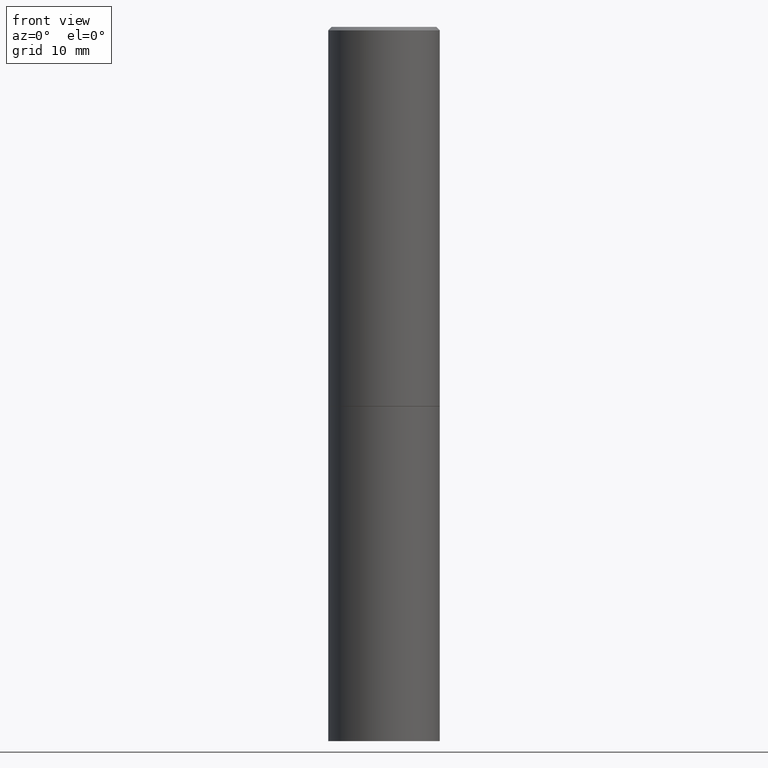
[diagram: clean part render]
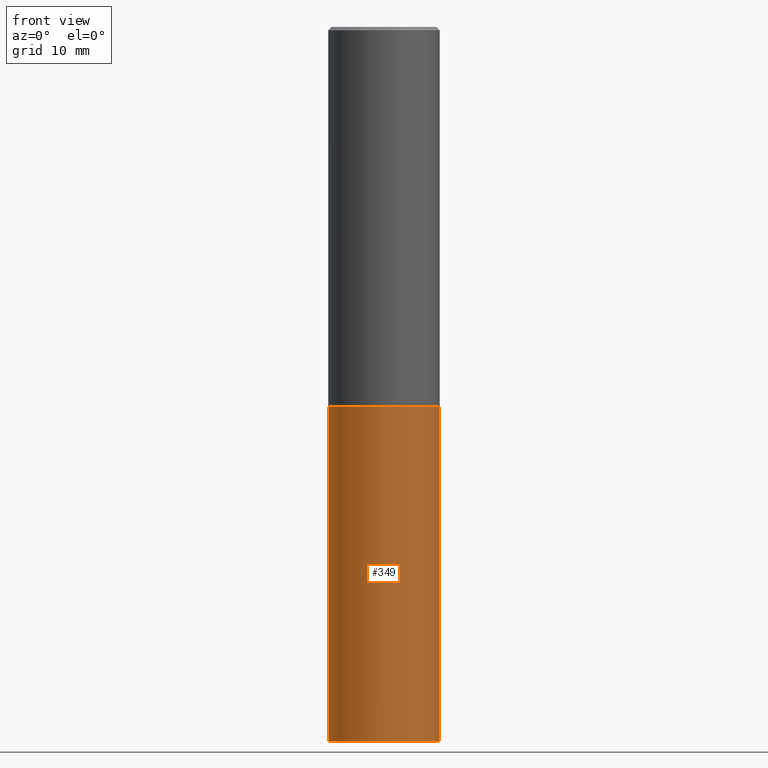
[diagram: same view with one face highlighted and labeled with its STEP entity id]
A machine part, front view. The second image highlights one B-rep face of the part: STEP entity #349.
In plain terms, the highlighted cylindrical surface (partial cylindrical patch) has radius 7.9375 mm, axis along (-0, 0, 1).
Its self-contained STEP definition (entity closure, byte-faithful):
#16 = DIRECTION ( 'NONE',  ( -2.445468806185136877E-29, 3.491481338843145188E-15, 1.000000000000000000 ) ) ;
#27 = DIRECTION ( 'NONE',  ( 1.000000000000000000, -6.982962677686269077E-15, 0.000000000000000000 ) ) ;
#29 = VERTEX_POINT ( 'NONE', #106 ) ;
#39 = DIRECTION ( 'NONE',  ( 1.000000000000000000, -6.982962677686265133E-15, 0.000000000000000000 ) ) ;
#48 = DIRECTION ( 'NONE',  ( -2.445468806185136597E-29, 3.491481338843145583E-15, 1.000000000000000000 ) ) ;
#50 = AXIS2_PLACEMENT_3D ( 'NONE', #89, #91, #39 ) ;
#67 = VERTEX_POINT ( 'NONE', #238 ) ;
#72 = CARTESIAN_POINT ( 'NONE',  ( 0.3125000000000000000, -2.182175836776958347E-15, 1.523805242436230075E-29 ) ) ;
#73 = CIRCLE ( 'NONE', #50, 0.3125000000000000000 ) ;
#89 = CARTESIAN_POINT ( 'NONE',  ( 5.196621213143414147E-29, -7.419397845041682046E-15, -2.124999999999999556 ) ) ;
#91 = DIRECTION ( 'NONE',  ( -2.445468806185136597E-29, 3.491481338843145583E-15, 1.000000000000000000 ) ) ;
#96 = ORIENTED_EDGE ( 'NONE', *, *, #257, .F. ) ;
#106 = CARTESIAN_POINT ( 'NONE',  ( 0.3125000000000000000, -1.614810119214954068E-14, -4.000000000000000000 ) ) ;
#108 = AXIS2_PLACEMENT_3D ( 'NONE', #321, #322, #125 ) ;
#109 = EDGE_CURVE ( 'NONE', #227, #67, #282, .T. ) ;
#117 = VERTEX_POINT ( 'NONE', #272 ) ;
#125 = DIRECTION ( 'NONE',  ( 1.000000000000000000, -6.982962677686266711E-15, 4.876176775795936353E-29 ) ) ;
#126 = EDGE_CURVE ( 'NONE', #29, #117, #241, .T. ) ;
#141 = EDGE_CURVE ( 'NONE', #227, #29, #215, .T. ) ;
#163 = VECTOR ( 'NONE', #16, 39.37007874015748143 ) ;
#174 = ORIENTED_EDGE ( 'NONE', *, *, #141, .T. ) ;
#189 = AXIS2_PLACEMENT_3D ( 'NONE', #331, #48, #27 ) ;
#199 = FACE_OUTER_BOUND ( 'NONE', #247, .T. ) ;
#215 = CIRCLE ( 'NONE', #189, 0.3125000000000000000 ) ;
#217 = CARTESIAN_POINT ( 'NONE',  ( -0.3125000000000000000, 2.220446049250313081E-15, -1.537167215704658232E-29 ) ) ;
#227 = VERTEX_POINT ( 'NONE', #297 ) ;
#238 = CARTESIAN_POINT ( 'NONE',  ( -0.3125000000000000000, -8.472215550956819896E-15, -2.124999999999999556 ) ) ;
#241 = LINE ( 'NONE', #72, #163 ) ;
#246 = DIRECTION ( 'NONE',  ( -2.445468806185136877E-29, 3.491481338843145188E-15, 1.000000000000000000 ) ) ;
#247 = EDGE_LOOP ( 'NONE', ( #315, #174, #358, #96 ) ) ;
#257 = EDGE_CURVE ( 'NONE', #67, #117, #73, .T. ) ;
#272 = CARTESIAN_POINT ( 'NONE',  ( 0.3125000000000000000, -9.601573681818640393E-15, -2.124999999999999556 ) ) ;
#282 = LINE ( 'NONE', #217, #308 ) ;
#292 = CYLINDRICAL_SURFACE ( 'NONE', #108, 0.3125000000000000000 ) ;
#297 = CARTESIAN_POINT ( 'NONE',  ( -0.3125000000000000000, -8.472215550956819896E-15, -4.000000000000000000 ) ) ;
#308 = VECTOR ( 'NONE', #246, 39.37007874015748143 ) ;
#315 = ORIENTED_EDGE ( 'NONE', *, *, #109, .F. ) ;
#321 = CARTESIAN_POINT ( 'NONE',  ( 0.000000000000000000, 0.000000000000000000, 0.000000000000000000 ) ) ;
#322 = DIRECTION ( 'NONE',  ( -2.445468806185136597E-29, 3.491481338843145583E-15, 1.000000000000000000 ) ) ;
#331 = CARTESIAN_POINT ( 'NONE',  ( 9.781875224740546387E-29, -1.396592535537258233E-14, -4.000000000000000000 ) ) ;
#349 = ADVANCED_FACE ( 'NONE', ( #199 ), #292, .T. ) ;
#358 = ORIENTED_EDGE ( 'NONE', *, *, #126, .T. ) ;